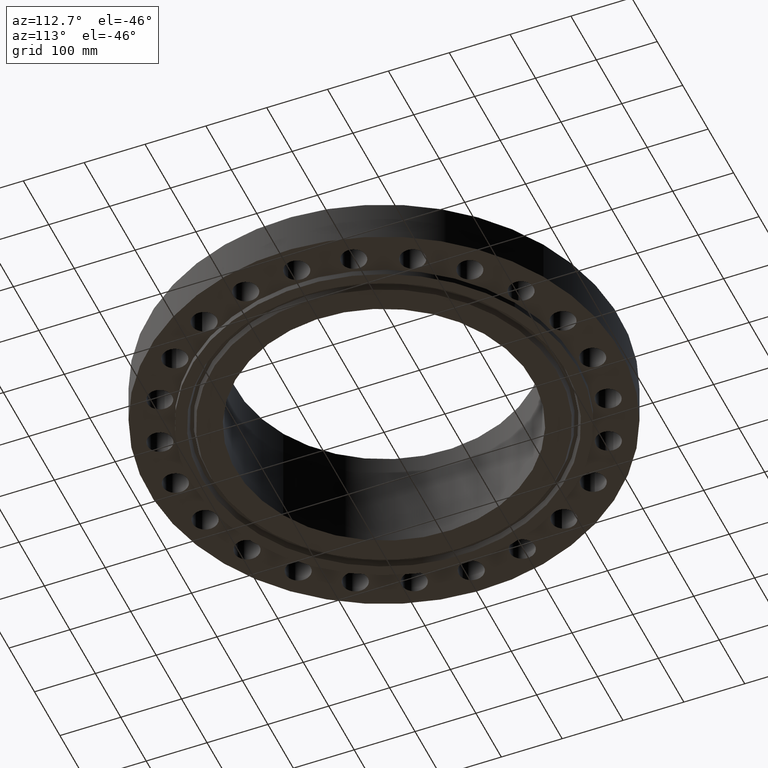
[diagram: clean part render]
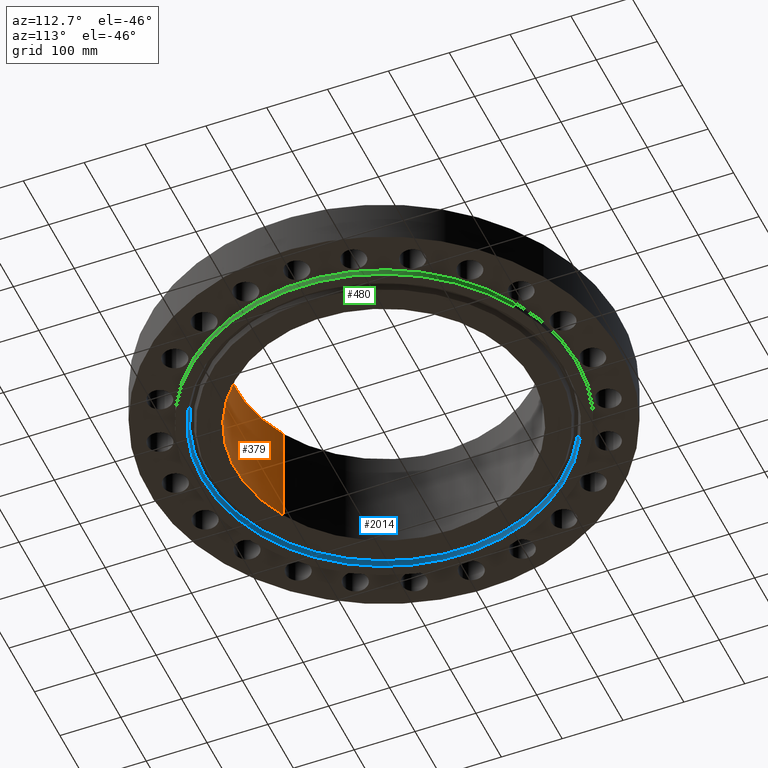
[diagram: same view with three faces highlighted in distinct colors, each labeled with its STEP entity id]
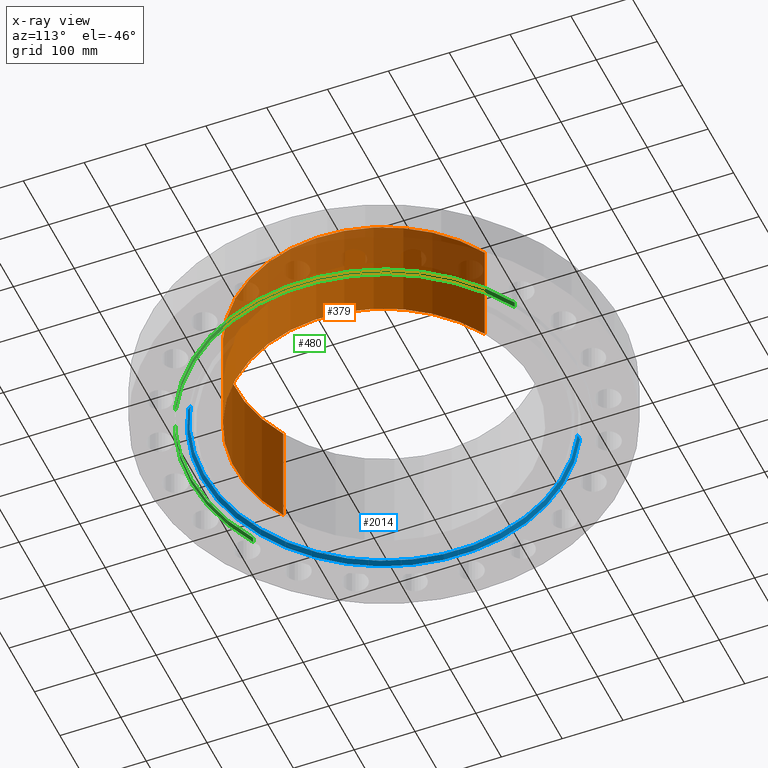
[diagram: x-ray of the same camera — body ghosted, the three highlighted faces saturated]
A machine part, auxiliary view with three faces highlighted in distinct colors.
The next image is the same camera in x-ray (body ghosted, the three faces saturated) — at least one of them is partly hidden behind the body in this view.
Their STEP definitions:

[orange] entity #379 — the highlighted cylindrical surface (partial cylindrical patch) has radius 244.475 mm, axis along (0, 0, -1).
#343=AXIS2_PLACEMENT_3D('Cylinder Axis2P3D',#340,#341,#342) ;
#347=AXIS2_PLACEMENT_3D('Circle Axis2P3D',#345,#346,$) ;
#363=AXIS2_PLACEMENT_3D('Circle Axis2P3D',#361,#362,$) ;
#340=CARTESIAN_POINT('Axis2P3D Location',(0.,0.,3.12250000001)) ;
#345=CARTESIAN_POINT('Axis2P3D Location',(0.,0.,6.62000000003)) ;
#349=CARTESIAN_POINT('Vertex',(4.61447080908,8.44673215823,6.62000000003)) ;
#351=CARTESIAN_POINT('Vertex',(-4.61447080908,-8.44673215823,6.62000000003)) ;
#354=CARTESIAN_POINT('Line Origine',(4.61447080908,8.44673215823,3.12250000001)) ;
#358=CARTESIAN_POINT('Vertex',(4.61447080908,8.44673215823,-0.375000000002)) ;
#361=CARTESIAN_POINT('Axis2P3D Location',(0.,0.,-0.375000000002)) ;
#365=CARTESIAN_POINT('Vertex',(-4.61447080908,-8.44673215823,-0.375000000002)) ;
#368=CARTESIAN_POINT('Line Origine',(-4.61447080908,-8.44673215823,3.12250000001)) ;
#341=DIRECTION('Axis2P3D Direction',(0.,0.,-0.0393700787402)) ;
#342=DIRECTION('Axis2P3D XDirection',(-0.0188750212049,-0.0345504945626,0.)) ;
#346=DIRECTION('Axis2P3D Direction',(0.,0.,-0.0393700787402)) ;
#355=DIRECTION('Vector Direction',(0.,0.,-0.0393700787402)) ;
#362=DIRECTION('Axis2P3D Direction',(0.,0.,-0.0393700787402)) ;
#369=DIRECTION('Vector Direction',(0.,0.,-0.0393700787402)) ;
#356=VECTOR('Line Direction',#355,0.0393700787402) ;
#370=VECTOR('Line Direction',#369,0.0393700787402) ;
#374=ORIENTED_EDGE('',*,*,#353,.F.) ;
#375=ORIENTED_EDGE('',*,*,#360,.T.) ;
#376=ORIENTED_EDGE('',*,*,#367,.T.) ;
#377=ORIENTED_EDGE('',*,*,#372,.F.) ;
#379=ADVANCED_FACE('PartBody',(#378),#344,.F.) ;
#348=CIRCLE('generated circle',#347,9.62500000004) ;
#364=CIRCLE('generated circle',#363,9.62500000004) ;
#344=CYLINDRICAL_SURFACE('generated cylinder',#343,9.62500000004) ;
#353=EDGE_CURVE('',#350,#352,#348,.T.) ;
#360=EDGE_CURVE('',#350,#359,#357,.T.) ;
#367=EDGE_CURVE('',#359,#366,#364,.T.) ;
#372=EDGE_CURVE('',#352,#366,#371,.T.) ;
#373=EDGE_LOOP('',(#374,#375,#376,#377)) ;
#378=FACE_OUTER_BOUND('',#373,.T.) ;
#357=LINE('Line',#354,#356) ;
#371=LINE('Line',#368,#370) ;
#350=VERTEX_POINT('',#349) ;
#352=VERTEX_POINT('',#351) ;
#359=VERTEX_POINT('',#358) ;
#366=VERTEX_POINT('',#365) ;

[blue] entity #2014 — the highlighted conical surface has half-angle 23 deg.
#1913=AXIS2_PLACEMENT_3D('Circle Axis2P3D',#1911,#1912,$) ;
#1960=AXIS2_PLACEMENT_3D('Circle Axis2P3D',#1958,#1959,$) ;
#1996=AXIS2_PLACEMENT_3D('Cone Axis2P3D',#1993,#1994,#1995) ;
#1911=CARTESIAN_POINT('Axis2P3D Location',(-2.79741234551E-016,2.23792987641E-015,-0.375000000001)) ;
#1915=CARTESIAN_POINT('Vertex',(5.64068117447,-10.325197632,-0.375000000001)) ;
#1917=CARTESIAN_POINT('Vertex',(-5.64068117447,10.325197632,-0.375000000001)) ;
#1958=CARTESIAN_POINT('Axis2P3D Location',(0.,0.,-0.0383839389053)) ;
#1962=CARTESIAN_POINT('Vertex',(-5.57217843689,10.1998042119,-0.0383839389053)) ;
#1964=CARTESIAN_POINT('Vertex',(5.57217843689,-10.1998042119,-0.0383839389053)) ;
#1993=CARTESIAN_POINT('Axis2P3D Location',(0.,0.,-0.0383839389053)) ;
#1998=CARTESIAN_POINT('Line Origine',(-5.60642980568,10.2625009219,-0.206691969453)) ;
#2003=CARTESIAN_POINT('Line Origine',(5.60642980568,-10.2625009219,-0.206691969453)) ;
#1912=DIRECTION('Axis2P3D Direction',(0.,0.,-0.0393700787402)) ;
#1959=DIRECTION('Axis2P3D Direction',(0.,0.,0.0393700787402)) ;
#1994=DIRECTION('Axis2P3D Direction',(-0.,-0.,-0.0393700787402)) ;
#1995=DIRECTION('Axis2P3D XDirection',(-0.0188750212049,0.0345504945626,0.)) ;
#1999=DIRECTION('Vector Direction',(-0.00737505833565,0.0134999537303,-0.0362403485611)) ;
#2004=DIRECTION('Vector Direction',(0.00737505833565,-0.0134999537303,-0.0362403485611)) ;
#2000=VECTOR('Line Direction',#1999,0.0393700787402) ;
#2005=VECTOR('Line Direction',#2004,0.0393700787402) ;
#2009=ORIENTED_EDGE('',*,*,#1919,.T.) ;
#2010=ORIENTED_EDGE('',*,*,#2002,.T.) ;
#2011=ORIENTED_EDGE('',*,*,#1966,.T.) ;
#2012=ORIENTED_EDGE('',*,*,#2007,.F.) ;
#2014=ADVANCED_FACE('PartBody',(#2013),#1997,.F.) ;
#1914=CIRCLE('generated circle',#1913,11.7655) ;
#1961=CIRCLE('generated circle',#1960,11.6226149594) ;
#1997=CONICAL_SURFACE('Cone',#1996,11.6226149594,0.401425727959) ;
#1919=EDGE_CURVE('',#1916,#1918,#1914,.T.) ;
#1966=EDGE_CURVE('',#1963,#1965,#1961,.T.) ;
#2002=EDGE_CURVE('',#1918,#1963,#2001,.F.) ;
#2007=EDGE_CURVE('',#1916,#1965,#2006,.F.) ;
#2008=EDGE_LOOP('',(#2009,#2010,#2011,#2012)) ;
#2013=FACE_OUTER_BOUND('',#2008,.T.) ;
#2001=LINE('Line',#1998,#2000) ;
#2006=LINE('Line',#2003,#2005) ;
#1916=VERTEX_POINT('',#1915) ;
#1918=VERTEX_POINT('',#1917) ;
#1963=VERTEX_POINT('',#1962) ;
#1965=VERTEX_POINT('',#1964) ;

[green] entity #480 — the highlighted cylindrical surface (partial cylindrical patch) has radius 317.5 mm, axis along (0, 0, -1).
#427=AXIS2_PLACEMENT_3D('Cylinder Axis2P3D',#424,#425,#426) ;
#466=AXIS2_PLACEMENT_3D('Circle Axis2P3D',#464,#465,$) ;
#471=AXIS2_PLACEMENT_3D('Circle Axis2P3D',#469,#470,$) ;
#424=CARTESIAN_POINT('Axis2P3D Location',(0.,0.,3.12250000001)) ;
#433=CARTESIAN_POINT('Vertex',(-5.99281923258,-10.9697820237,-0.375000000002)) ;
#435=CARTESIAN_POINT('Vertex',(5.99281923258,10.9697820237,-0.375000000002)) ;
#438=CARTESIAN_POINT('Line Origine',(-5.99281923258,-10.9697820237,-0.187500000001)) ;
#442=CARTESIAN_POINT('Vertex',(-5.99281923258,-10.9697820237,1.67844740731E-015)) ;
#449=CARTESIAN_POINT('Vertex',(5.99281923258,10.9697820237,1.67844740731E-015)) ;
#452=CARTESIAN_POINT('Line Origine',(5.99281923258,10.9697820237,-0.187500000001)) ;
#464=CARTESIAN_POINT('Axis2P3D Location',(0.,0.,-0.375000000002)) ;
#469=CARTESIAN_POINT('Axis2P3D Location',(0.,0.,1.67844740731E-015)) ;
#425=DIRECTION('Axis2P3D Direction',(0.,0.,-0.0393700787402)) ;
#426=DIRECTION('Axis2P3D XDirection',(0.0188750212049,0.0345504945626,0.)) ;
#439=DIRECTION('Vector Direction',(0.,0.,-0.0393700787402)) ;
#453=DIRECTION('Vector Direction',(0.,0.,-0.0393700787402)) ;
#465=DIRECTION('Axis2P3D Direction',(0.,0.,-0.0393700787402)) ;
#470=DIRECTION('Axis2P3D Direction',(0.,0.,-0.0393700787402)) ;
#440=VECTOR('Line Direction',#439,0.0393700787402) ;
#454=VECTOR('Line Direction',#453,0.0393700787402) ;
#475=ORIENTED_EDGE('',*,*,#468,.F.) ;
#476=ORIENTED_EDGE('',*,*,#456,.T.) ;
#477=ORIENTED_EDGE('',*,*,#473,.T.) ;
#478=ORIENTED_EDGE('',*,*,#444,.F.) ;
#480=ADVANCED_FACE('PartBody',(#479),#428,.T.) ;
#467=CIRCLE('generated circle',#466,12.5000000001) ;
#472=CIRCLE('generated circle',#471,12.5000000001) ;
#428=CYLINDRICAL_SURFACE('generated cylinder',#427,12.5000000001) ;
#444=EDGE_CURVE('',#434,#443,#441,.F.) ;
#456=EDGE_CURVE('',#436,#450,#455,.F.) ;
#468=EDGE_CURVE('',#436,#434,#467,.T.) ;
#473=EDGE_CURVE('',#450,#443,#472,.T.) ;
#474=EDGE_LOOP('',(#475,#476,#477,#478)) ;
#479=FACE_OUTER_BOUND('',#474,.T.) ;
#441=LINE('Line',#438,#440) ;
#455=LINE('Line',#452,#454) ;
#434=VERTEX_POINT('',#433) ;
#436=VERTEX_POINT('',#435) ;
#443=VERTEX_POINT('',#442) ;
#450=VERTEX_POINT('',#449) ;